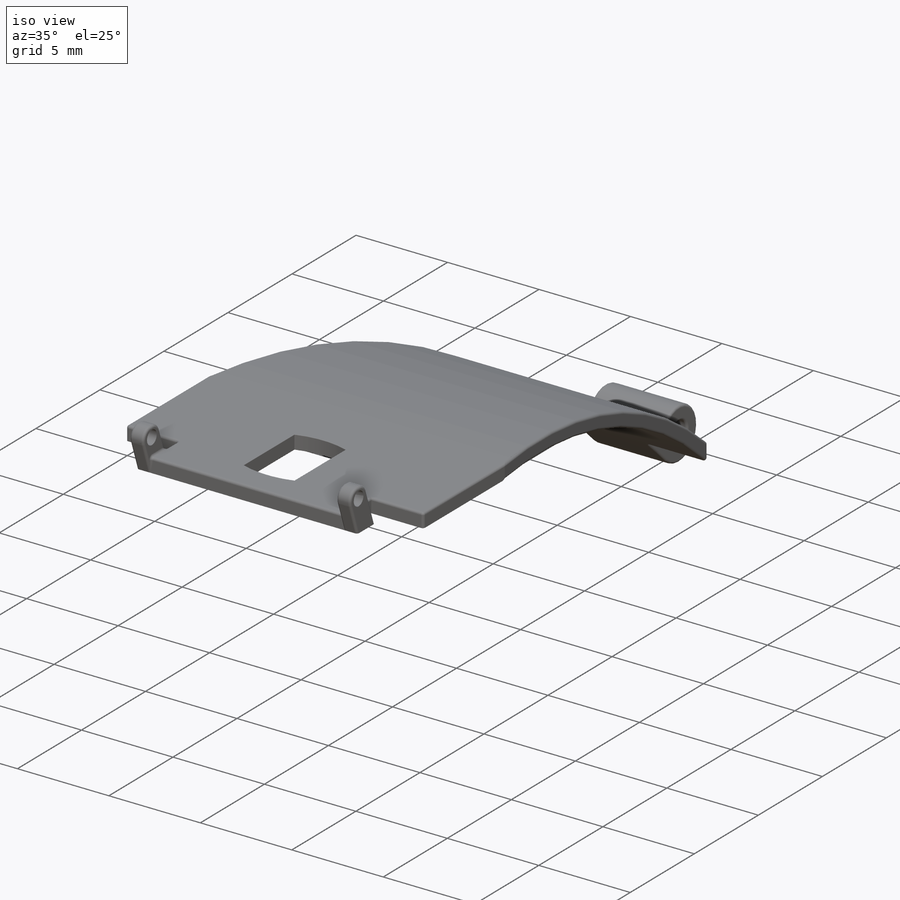
[diagram: iso view]
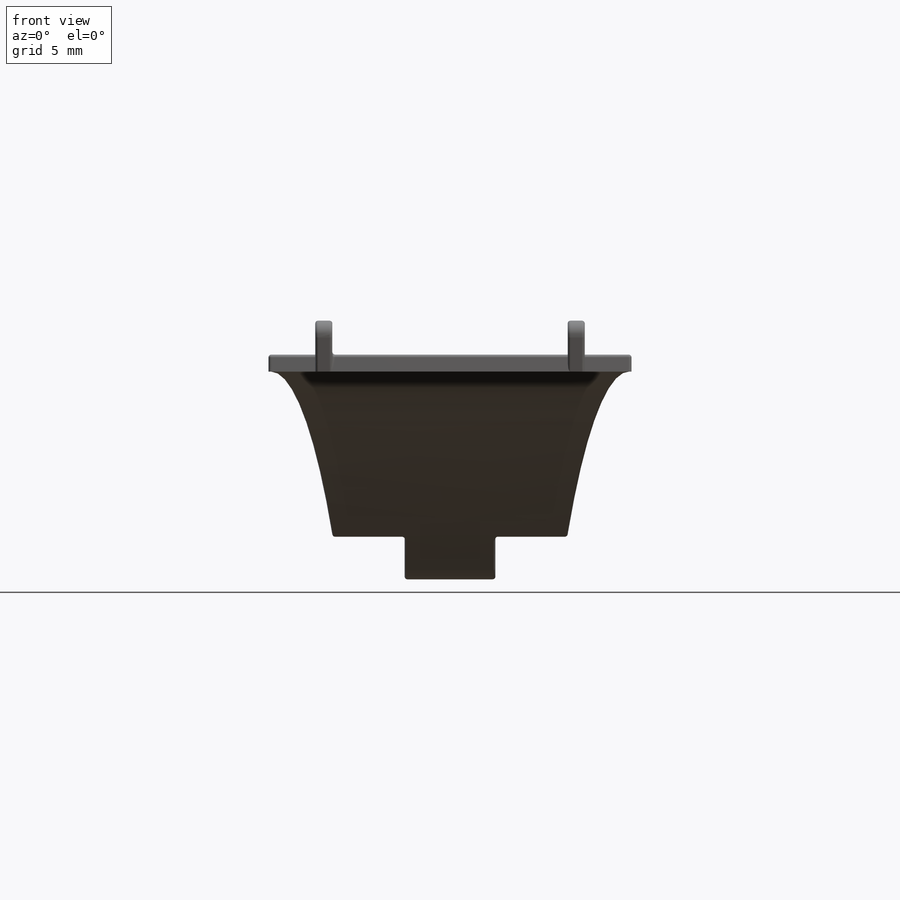
[diagram: front view]
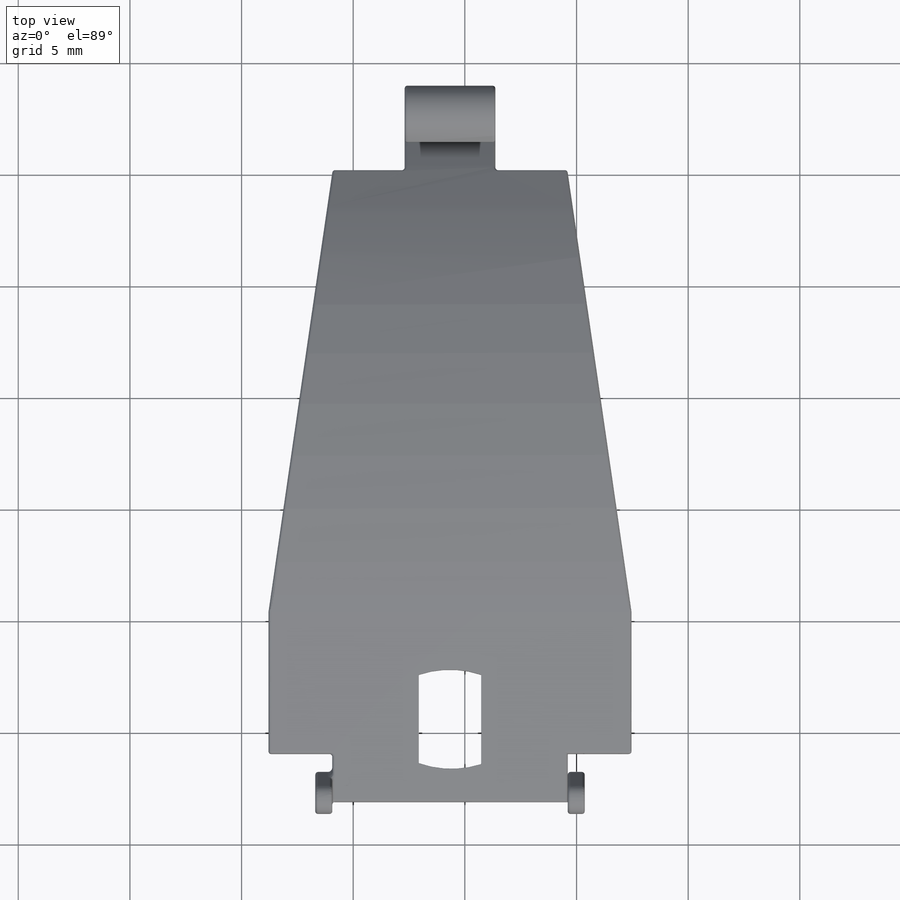
[diagram: top view]
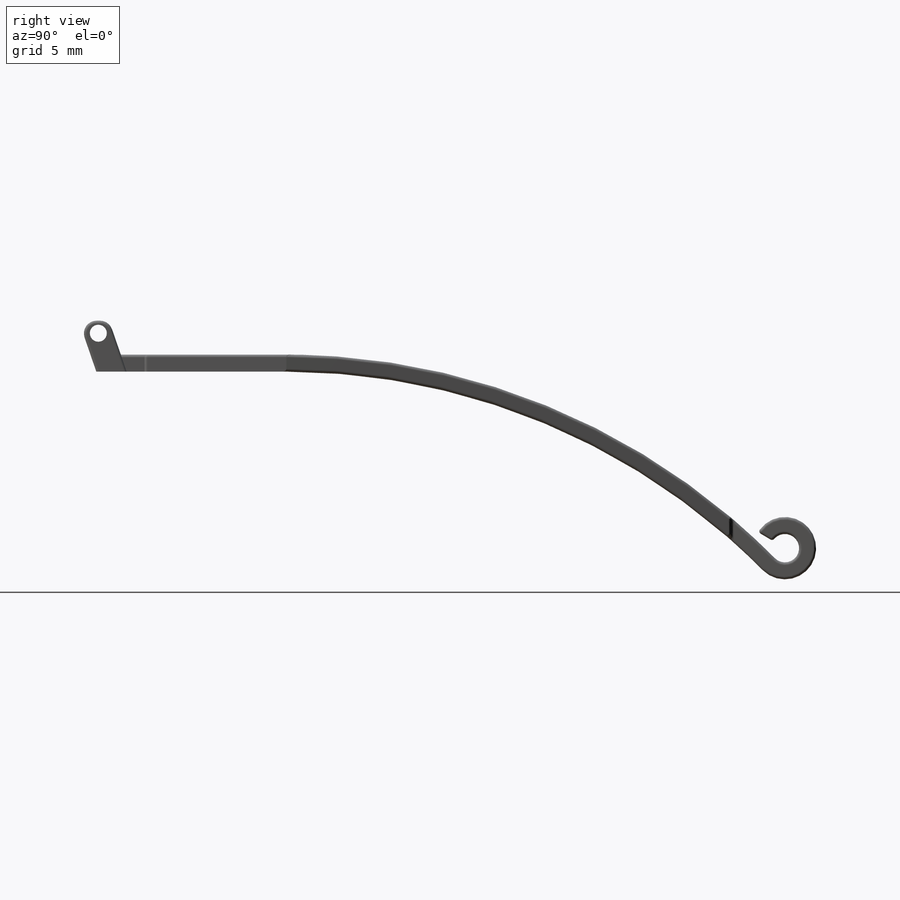
[diagram: right view]
SOLIDWORKS PART (.sldprt)
format: sldprt  version: not decoded by parser v0  size: 928,768 bytes
history: native  units: mm
features: sketch x18, fillet x18, extrude x10, cut_extrude x8, plane x2, material x1, mirror x1 (+11 scaffold rows collapsed)
feature tree (69):
  scaffold x11  (default folders/planes/origin — collapsed)
  material  "Material <not specified>"
  sketch  "Sketch1"  dims[D1=18.669mm D2=12.7mm]
  extrude  "Extrude1"  Depth=0.762mm
  sketch  "Sketch2"  dims[D1=2.794mm D2=2.794mm D3=0.762mm D4=0.762mm]
  extrude  "Extrude2"  Depth=3.937mm
  fillet  "Fillet1"  Radius=1.397mm
  sketch  "Sketch3"  dims[D1=0.762mm]
  cut_extrude  "Extrude3"  [1 undecoded]
  sketch  "Sketch4"
  extrude  "Extrude4"  Depth=0.889mm
  plane  "Plane1"
  sketch  "Sketch5"  dims[D6=1.397mm D1=8.89mm D2=34.29mm D4=0.254mm D7=0.762mm D3=0.762mm D5=0.762mm]
  extrude  "Extrude5"  Depth=16.256mm
  sketch  "Sketch6"  dims[D1=10.16mm D2=3.048mm]
  cut_extrude  "Extrude6"  [1 undecoded]
  sketch  "Sketch7"  dims[c1.D1=4.699mm c1.D2=3.81mm c2.D1=2.032mm c2.D3=2.032mm]
  cut_extrude  "Extrude7"  [1 undecoded]
  fillet  "Fillet5"  Radius=0.762mm
  fillet  "Fillet6"  Radius=0.762mm
  fillet  "Fillet8"  Radius=0.127mm
  sketch  "Sketch8"  dims[D1=2.794mm D2=4.699mm]
  extrude  "Extrude8"  Depth=0.254mm
  fillet  "Fillet9"  Radius=0.254mm
  sketch  "Sketch9"  dims[D1=2.032mm]
  extrude  "Extrude9"  Depth=0.635mm
  sketch  "Sketch11"  dims[D1=1.016mm]
  extrude  "Extrude10"  Depth=1.016mm
  sketch  "Sketch12"  dims[D1=2.032mm]
  extrude  "Extrude11"  Depth=0.381mm
  fillet  "Fillet10"  Radius=0.508mm
  fillet  "Fillet11"  Radius=0.0254mm
  fillet  "Fillet12"  Radius=0.0254mm
  sketch  "Sketch13"
  cut_extrude  "Extrude12"  [1 undecoded]
  sketch  "Sketch14"
  cut_extrude  "Extrude13"  [1 undecoded]
  sketch  "Sketch15"  dims[D1=6.35mm]
  cut_extrude  "Extrude15"  [1 undecoded]
  sketch  "Sketch16"  dims[D1=2.159mm D2=10.541mm]
  extrude  "Extrude16"  [1 undecoded]
  sketch  "Sketch17"  dims[c1.D1=~1.943203mm c2.D1=~15.206558deg]
  extrude  "Extrude17"  Depth=0.762mm
  fillet  "Fillet14"  Radius=0.5715mm
  fillet  "Fillet17"  Radius=0.127mm
  fillet  "Fillet19"  Radius=0.127mm
  fillet  "Fillet21"  Radius=0.127mm
  plane  "Plane2"
  fillet  "Fillet23"  Radius=0.127mm
  sketch  "Sketch18"  dims[D1=0.762mm]
  cut_extrude  "Extrude18"  [1 undecoded]
  sketch  "Sketch19"  dims[c1.D1=2.921mm c1.D2=4.445mm c1.D3=0.254mm c1.D4=0.254mm c1.D5=0.254mm c1.D6=0.254mm c2.D1=6.604mm c2.D2=6.604mm]
  cut_extrude  "Extrude19"  [1 undecoded]
  fillet  "Fillet25"  Radius=0.0254mm
  fillet  "Fillet26"  Radius=0.127mm
  mirror  "Mirror1"
  fillet  "Fillet31"  Radius=0.127mm
  fillet  "Fillet33"  Radius=0.0254mm
  fillet  "Fillet34"  Radius=0.2032mm
decode coverage: 42 of 55 modeling features carry decoded parameters
note: ~ marks probable driven/reference dimensions
note: 9 parameter values undecoded
summary: no parameter record found for 9 features
note: suppression state not decoded; provenance and decode notes live in map.json
